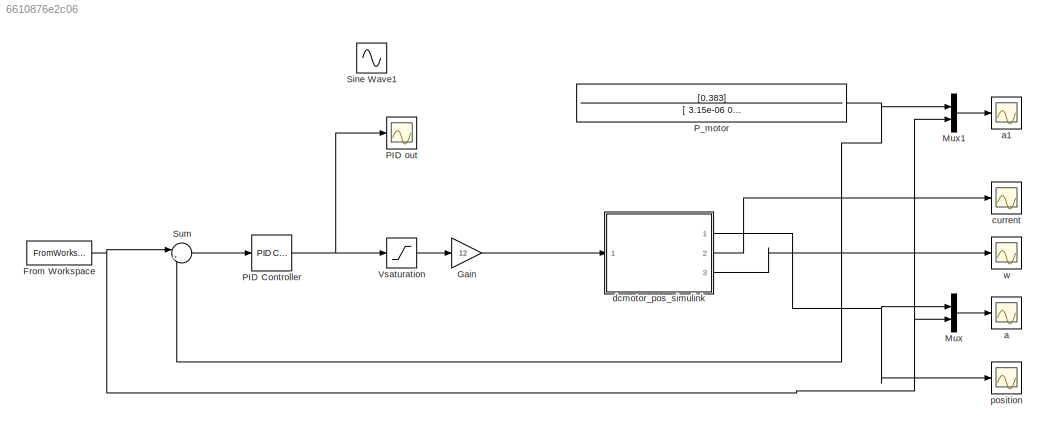
MODEL slx_6610876e2c06
KIND model
CONFIG AbsTol = auto
CONFIG EnableMultiTasking = off
CONFIG FixedStep = auto
CONFIG MaxStep = auto
CONFIG MinStep = auto
CONFIG RelTol = 1e-3
CONFIG SampleTimeConstraint = Unconstrained
CONFIG Solver = VariableStepAuto
CONFIG SolverName = VariableStepAuto
CONFIG StartTime = 0.0
CONFIG StopTime = 1
BLOCK [FromWorkspace] From Workspace
  OutDataTypeStr = double
  OutputAfterFinalValue = Holding final value
  SampleTime = 0
  VariableName = sim_in
  ZeroCross = on
BLOCK [Gain] Gain
  Gain = 12
  OutDataTypeStr = Inherit: Inherit via internal rule
  ParamDataTypeStr = Inherit: Inherit via internal rule
  SaturateOnIntegerOverflow = off
BLOCK [Mux] Mux
  DisplayOption = bar
  Inputs = 2
  Ports = [2, 1]
BLOCK [Mux] Mux1
  DisplayOption = bar
  Inputs = 2
  Ports = [2, 1]
BLOCK [Reference] PID Controller  REF=simulink/Continuous/PID Controller
  Ports = [1, 1]
  SourceBlock = simulink/Continuous/PID Controller
  SourceProductBaseCode = SL
  SourceProductName = Simulink
  SourceType = PID 1dof
BLOCK [Scope] PID out
  NumInputPorts = 1
  Ports = [1]
  ScopeSpecificationString = Simulink.scopes.TimeScopeBlockCfg('CurrentConfiguration', extmgr.ConfigurationSet(extmgr.Configuration('Core','General UI',true),extmgr.Configuration('Core','Source UI',true),extmgr.Configuration('Sources','WiredSimulink',true,'DataLoggingVariableName','ScopeData2'),extmgr.Configuration('Visuals','Time Domain',true,'SerializedDisplays',{struct('MinYLimReal','-0.34428','MaxYLimReal','3.2327','YLabe...<+1742ch>
BLOCK [TransferFcn] P_motor
  Denominator = [ 3.15e-06  0.003163  0.16  0.13052]
  Numerator = [0.383]
BLOCK [Sin] Sine Wave1
  Amplitude = 5
  Bias = 5
  Frequency = 62.8
  Ports = [0, 1]
  SampleTime = 0
BLOCK [Sum] Sum
  IconShape = round
  InputSameDT = off
  Inputs = |+-
  OutDataTypeStr = Inherit: Inherit via internal rule
  Ports = [2, 1]
  SaturateOnIntegerOverflow = off
BLOCK [Saturate] Vsaturation
  InputPortMap = u0
  LowerLimit = 0
  Ports = [1, 1]
  UpperLimit = 1
BLOCK [Scope] a
  NumInputPorts = 1
  Ports = [1]
  ScopeSpecificationString = Simulink.scopes.TimeScopeBlockCfg('CurrentConfiguration', extmgr.ConfigurationSet(extmgr.Configuration('Core','General UI',true),extmgr.Configuration('Core','Source UI',true),extmgr.Configuration('Sources','WiredSimulink',true,'DataLoggingVariableName','ScopeData3'),extmgr.Configuration('Visuals','Time Domain',true,'SerializedDisplays',{struct('MinYLimReal','-0.11202','MaxYLimReal','1.00818','YLab...<+1823ch>
BLOCK [Scope] a1
  NumInputPorts = 1
  Ports = [1]
  ScopeSpecificationString = Simulink.scopes.TimeScopeBlockCfg('CurrentConfiguration', extmgr.ConfigurationSet(extmgr.Configuration('Core','General UI',true),extmgr.Configuration('Core','Source UI',true),extmgr.Configuration('Sources','WiredSimulink',true,'DataLoggingVariableName','ScopeData1'),extmgr.Configuration('Visuals','Time Domain',true,'SerializedDisplays',{struct('MinYLimReal','-0.10798','MaxYLimReal','0.9718','YLabe...<+1812ch>
BLOCK [Scope] current
  NumInputPorts = 1
  Ports = [1]
  ScopeSpecificationString = Simulink.scopes.TimeScopeBlockCfg('CurrentConfiguration', extmgr.ConfigurationSet(extmgr.Configuration('Core','General UI',true),extmgr.Configuration('Core','Source UI',true),extmgr.Configuration('Sources','WiredSimulink',true,'DataLoggingVariableName','current','DataLogging',true,'DataLoggingSaveFormat','StructureWithTime'),extmgr.Configuration('Visuals','Time Domain',true,'SerializedDisplays',{s...<+1524ch>
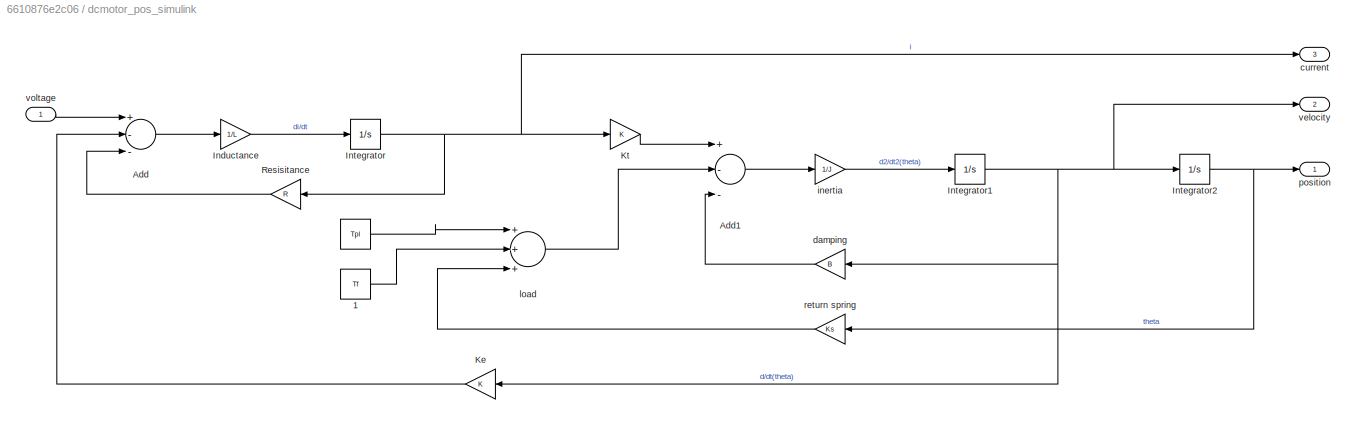
BLOCK [SubSystem] dcmotor_pos_simulink
  Ports = [1, 3]
  RequestExecContextInheritance = off
  Variant = off
BLOCK [Constant] dcmotor_pos_simulink/ 
  Value = Tpl
BLOCK [Constant] dcmotor_pos_simulink/ 1
  Value = Tf
BLOCK [Sum] dcmotor_pos_simulink/Add
  InputSameDT = off
  Inputs = +--
  OutDataTypeStr = Inherit: Inherit via internal rule
  Ports = [3, 1]
  SaturateOnIntegerOverflow = off
BLOCK [Sum] dcmotor_pos_simulink/Add1
  InputSameDT = off
  Inputs = +--
  OutDataTypeStr = Inherit: Inherit via internal rule
  Ports = [3, 1]
  SaturateOnIntegerOverflow = off
BLOCK [Gain] dcmotor_pos_simulink/Inductance 
  Gain = 1/L
  OutDataTypeStr = Inherit: Inherit via internal rule
  ParamDataTypeStr = Inherit: Inherit via internal rule
  SaturateOnIntegerOverflow = off
BLOCK [Integrator] dcmotor_pos_simulink/Integrator
  Ports = [1, 1]
BLOCK [Integrator] dcmotor_pos_simulink/Integrator1
  Ports = [1, 1]
BLOCK [Integrator] dcmotor_pos_simulink/Integrator2
  Ports = [1, 1]
BLOCK [Gain] dcmotor_pos_simulink/Ke
  Gain = K
  OutDataTypeStr = Inherit: Inherit via internal rule
  ParamDataTypeStr = Inherit: Inherit via internal rule
  SaturateOnIntegerOverflow = off
BLOCK [Gain] dcmotor_pos_simulink/Kt
  Gain = K
  OutDataTypeStr = Inherit: Inherit via internal rule
  ParamDataTypeStr = Inherit: Inherit via internal rule
  SaturateOnIntegerOverflow = off
BLOCK [Gain] dcmotor_pos_simulink/Resisitance
  Gain = R
  OutDataTypeStr = Inherit: Inherit via internal rule
  ParamDataTypeStr = Inherit: Inherit via internal rule
  SaturateOnIntegerOverflow = off
BLOCK [Outport] dcmotor_pos_simulink/current
  IconDisplay = Port number
  Port = 3
BLOCK [Gain] dcmotor_pos_simulink/damping
  Gain = B
  OutDataTypeStr = Inherit: Inherit via internal rule
  ParamDataTypeStr = Inherit: Inherit via internal rule
  SaturateOnIntegerOverflow = off
BLOCK [Gain] dcmotor_pos_simulink/inertia
  Gain = 1/J
  OutDataTypeStr = Inherit: Inherit via internal rule
  ParamDataTypeStr = Inherit: Inherit via internal rule
  SaturateOnIntegerOverflow = off
BLOCK [Sum] dcmotor_pos_simulink/load
  InputSameDT = off
  Inputs = +++
  OutDataTypeStr = Inherit: Inherit via internal rule
  Ports = [3, 1]
  SaturateOnIntegerOverflow = off
BLOCK [Outport] dcmotor_pos_simulink/position
  IconDisplay = Port number
BLOCK [Gain] dcmotor_pos_simulink/return spring
  Gain = Ks
  OutDataTypeStr = Inherit: Inherit via internal rule
  ParamDataTypeStr = Inherit: Inherit via internal rule
  SaturateOnIntegerOverflow = off
BLOCK [Outport] dcmotor_pos_simulink/velocity
  IconDisplay = Port number
  Port = 2
BLOCK [Inport] dcmotor_pos_simulink/voltage
  IconDisplay = Port number
BLOCK [Scope] position
  NumInputPorts = 1
  Ports = [1]
  ScopeSpecificationString = Simulink.scopes.TimeScopeBlockCfg('CurrentConfiguration', extmgr.ConfigurationSet(extmgr.Configuration('Core','General UI',true),extmgr.Configuration('Core','Source UI',true),extmgr.Configuration('Sources','WiredSimulink',true,'DataLoggingVariableName','position','DataLogging',true,'DataLoggingSaveFormat','StructureWithTime'),extmgr.Configuration('Visuals','Time Domain',true,'SerializedDisplays',{...<+1834ch>
BLOCK [Scope] w
  NumInputPorts = 1
  Ports = [1]
  ScopeSpecificationString = Simulink.scopes.TimeScopeBlockCfg('CurrentConfiguration', extmgr.ConfigurationSet(extmgr.Configuration('Core','General UI',true),extmgr.Configuration('Core','Source UI',true),extmgr.Configuration('Sources','WiredSimulink',true),extmgr.Configuration('Visuals','Time Domain',true,'SerializedDisplays',{struct('MinYLimReal','-3.59331','MaxYLimReal','32.33975','YLabelReal','','MinYLimMag','0.00000','Max...<+1474ch>
NET From Workspace:1 -> Mux1:2, Mux:2, Sum:1
LINE Gain:1 -> dcmotor_pos_simulink:1
LINE Mux1:1 -> a1:1
LINE Mux:1 -> a:1
NET PID Controller:1 -> PID out:1, Vsaturation:1
NET P_motor:1 -> Mux1:1, Sum:2
LINE Sum:1 -> PID Controller:1
LINE Vsaturation:1 -> Gain:1
LINE dcmotor_pos_simulink/ 1:1 -> dcmotor_pos_simulink/load:2
LINE dcmotor_pos_simulink/ :1 -> dcmotor_pos_simulink/load:1
LINE dcmotor_pos_simulink/Add1:1 -> dcmotor_pos_simulink/inertia:1
LINE dcmotor_pos_simulink/Add:1 -> dcmotor_pos_simulink/Inductance :1
LINE dcmotor_pos_simulink/Inductance :1 -> dcmotor_pos_simulink/Integrator:1
NET dcmotor_pos_simulink/Integrator1:1 -> dcmotor_pos_simulink/Integrator2:1, dcmotor_pos_simulink/Ke:1, dcmotor_pos_simulink/damping:1, dcmotor_pos_simulink/velocity:1
NET dcmotor_pos_simulink/Integrator2:1 -> dcmotor_pos_simulink/position:1, dcmotor_pos_simulink/return spring:1
NET dcmotor_pos_simulink/Integrator:1 -> dcmotor_pos_simulink/Kt:1, dcmotor_pos_simulink/Resisitance:1, dcmotor_pos_simulink/current:1
LINE dcmotor_pos_simulink/Ke:1 -> dcmotor_pos_simulink/Add:2
LINE dcmotor_pos_simulink/Kt:1 -> dcmotor_pos_simulink/Add1:1
LINE dcmotor_pos_simulink/Resisitance:1 -> dcmotor_pos_simulink/Add:3
LINE dcmotor_pos_simulink/damping:1 -> dcmotor_pos_simulink/Add1:3
LINE dcmotor_pos_simulink/inertia:1 -> dcmotor_pos_simulink/Integrator1:1
LINE dcmotor_pos_simulink/load:1 -> dcmotor_pos_simulink/Add1:2
LINE dcmotor_pos_simulink/return spring:1 -> dcmotor_pos_simulink/load:3
LINE dcmotor_pos_simulink/voltage:1 -> dcmotor_pos_simulink/Add:1
NET dcmotor_pos_simulink:1 -> Mux:1, position:1
LINE dcmotor_pos_simulink:2 -> current:1
LINE dcmotor_pos_simulink:3 -> w:1
note: NET lines group one-source signal fan-out (src -> all destinations, sorted); 1:1 wires keep LINE
